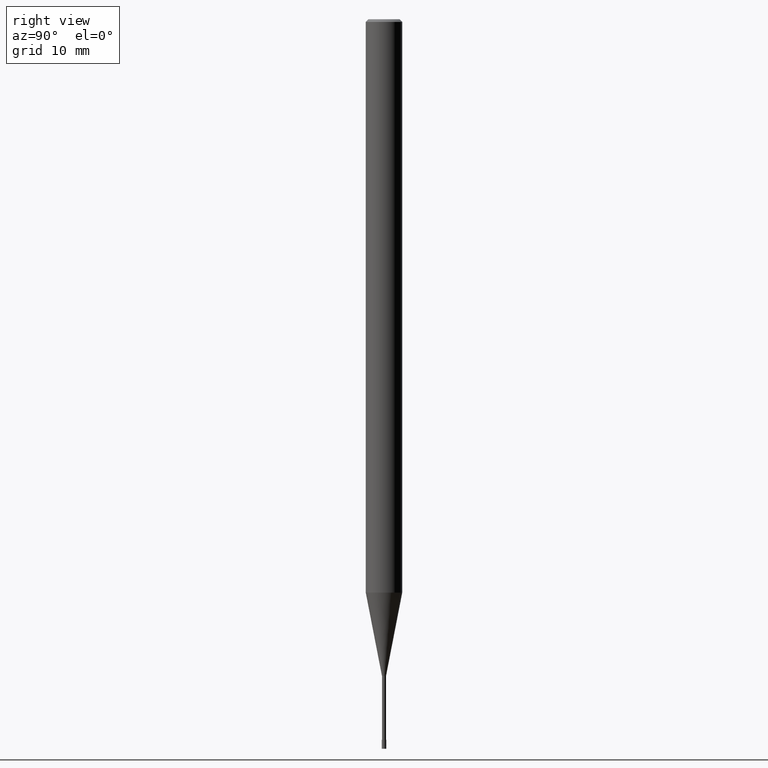
[diagram: clean part render]
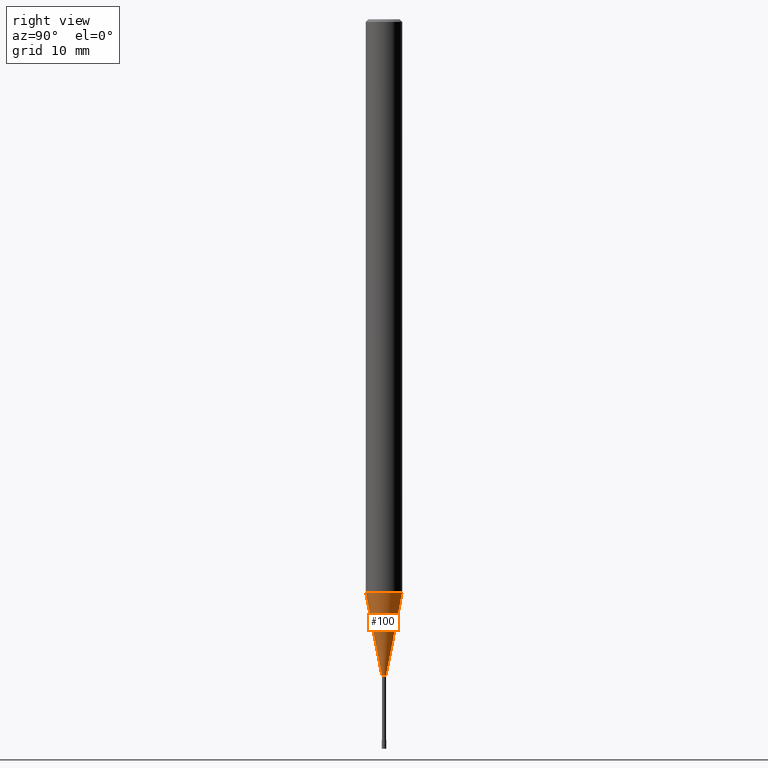
[diagram: same view with one face highlighted and labeled with its STEP entity id]
A machine part, right view. The second image highlights one B-rep face of the part: STEP entity #100.
In plain terms, the highlighted conical surface has half-angle 11 deg.
Its self-contained STEP definition (entity closure, byte-faithful):
#100=ADVANCED_FACE('',(#237),#238,.T.);
#108=EDGE_CURVE('',#136,#176,#247,.T.);
#110=VERTEX_POINT('',#249);
#114=EDGE_CURVE('',#110,#136,#253,.T.);
#136=VERTEX_POINT('',#277);
#158=EDGE_CURVE('',#176,#162,#302,.T.);
#162=VERTEX_POINT('',#306);
#168=EDGE_CURVE('',#110,#162,#314,.T.);
#176=VERTEX_POINT('',#323);
#237=FACE_OUTER_BOUND('',#384,.T.);
#238=CONICAL_SURFACE('',#385,1.11245,0.191977672522415);
#247=CIRCLE('',#397,0.22495);
#249=CARTESIAN_POINT('',(0.0,1.99995,-62.868));
#253=LINE('',#405,#406);
#277=CARTESIAN_POINT('',(0.0,0.22495,-72.0));
#302=LINE('',#471,#472);
#306=CARTESIAN_POINT('',(2.44915147732706E-016,-1.99995,-62.868));
#314=CIRCLE('',#487,1.99995);
#323=CARTESIAN_POINT('',(2.75475199292344E-017,-0.22495,-72.0));
#384=EDGE_LOOP('',(#548,#549,#550,#551));
#385=AXIS2_PLACEMENT_3D('',#552,#553,#554);
#397=AXIS2_PLACEMENT_3D('',#569,#570,#571);
#405=CARTESIAN_POINT('',(-1.3623133383097E-016,1.11245,-67.434));
#406=VECTOR('',#575,1.0);
#471=CARTESIAN_POINT('',(1.3623133383097E-016,-1.11245,-67.434));
#472=VECTOR('',#636,1.0);
#487=AXIS2_PLACEMENT_3D('',#646,#647,#648);
#548=ORIENTED_EDGE('',*,*,#114,.F.);
#549=ORIENTED_EDGE('',*,*,#168,.T.);
#550=ORIENTED_EDGE('',*,*,#158,.F.);
#551=ORIENTED_EDGE('',*,*,#108,.F.);
#552=CARTESIAN_POINT('',(0.0,0.0,-67.434));
#553=DIRECTION('',(-0.0,-0.0,1.0));
#554=DIRECTION('',(0.0,1.0,0.0));
#569=CARTESIAN_POINT('',(0.0,0.0,-72.0));
#570=DIRECTION('',(0.0,0.0,-1.0));
#571=DIRECTION('',(0.0,1.0,0.0));
#575=DIRECTION('',(2.33655635855942E-017,-0.190800607171954,-0.981628813912272));
#636=DIRECTION('',(2.33655635855942E-017,-0.190800607171954,0.981628813912272));
#646=CARTESIAN_POINT('',(0.0,0.0,-62.868));
#647=DIRECTION('',(0.0,0.0,-1.0));
#648=DIRECTION('',(0.0,1.0,0.0));